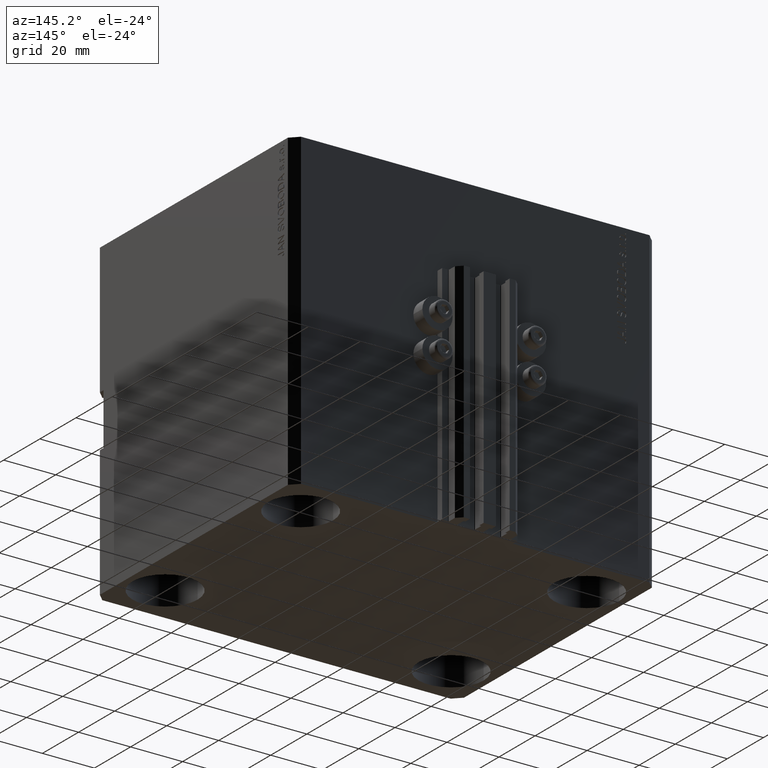
[diagram: clean part render]
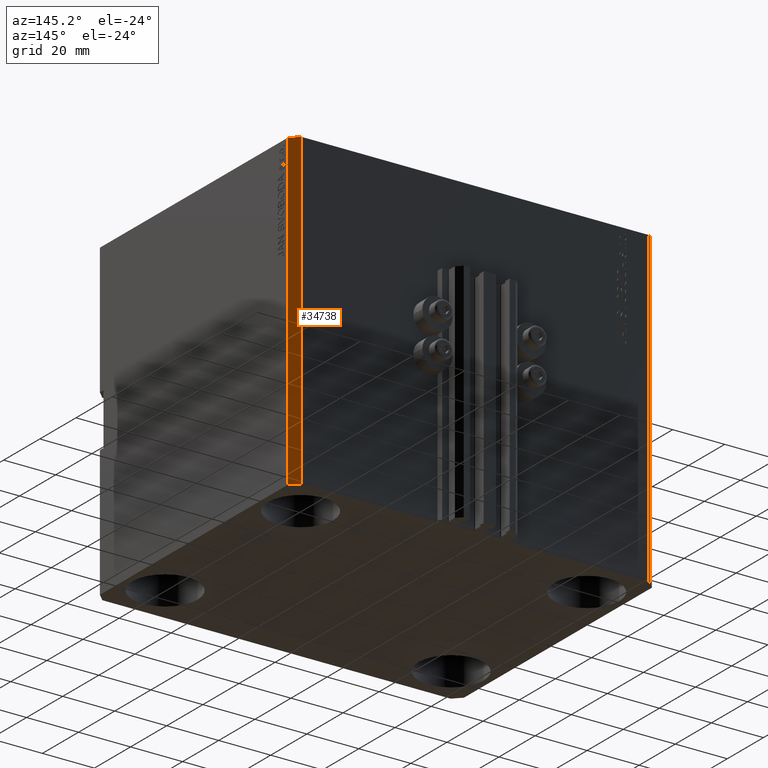
[diagram: same view with one face highlighted and labeled with its STEP entity id]
A machine part, auxiliary view. The second image highlights one B-rep face of the part: STEP entity #34738.
In plain terms, the highlighted planar face has unit normal (0.7071, 0.7071, 0).
Its self-contained STEP definition (entity closure, byte-faithful):
#369 = VERTEX_POINT ( 'NONE', #710 ) ;
#710 = CARTESIAN_POINT ( 'NONE',  ( 70.00000000000056843, 51.99999999999996447, 0.000000000000000000 ) ) ;
#1030 = DIRECTION ( 'NONE',  ( 0.000000000000000000, 0.000000000000000000, 1.000000000000000000 ) ) ;
#2008 = DIRECTION ( 'NONE',  ( -0.7071067811865344721, 0.7071067811865606734, 0.000000000000000000 ) ) ;
#2951 = EDGE_CURVE ( 'NONE', #11678, #45069, #29410, .T. ) ;
#4796 = CARTESIAN_POINT ( 'NONE',  ( 67.00000000000061107, 55.00000000000002132, 0.000000000000000000 ) ) ;
#6046 = VECTOR ( 'NONE', #1030, 1000.000000000000000 ) ;
#8432 = LINE ( 'NONE', #12882, #6046 ) ;
#9210 = VERTEX_POINT ( 'NONE', #4796 ) ;
#10125 = DIRECTION ( 'NONE',  ( 0.000000000000000000, 0.000000000000000000, 1.000000000000000000 ) ) ;
#10246 = VECTOR ( 'NONE', #44456, 1000.000000000000000 ) ;
#10285 = CARTESIAN_POINT ( 'NONE',  ( 67.00000000000061107, 55.00000000000002132, -120.0000000000000000 ) ) ;
#10608 = DIRECTION ( 'NONE',  ( 0.7071067811865605623, 0.7071067811865344721, -0.000000000000000000 ) ) ;
#11678 = VERTEX_POINT ( 'NONE', #35401 ) ;
#12882 = CARTESIAN_POINT ( 'NONE',  ( 70.00000000000056843, 51.99999999999996447, -120.0000000000000000 ) ) ;
#13241 = ORIENTED_EDGE ( 'NONE', *, *, #15892, .F. ) ;
#14068 = FACE_OUTER_BOUND ( 'NONE', #15563, .T. ) ;
#14556 = CARTESIAN_POINT ( 'NONE',  ( 70.00000000000056843, 51.99999999999996447, -120.0000000000000000 ) ) ;
#15563 = EDGE_LOOP ( 'NONE', ( #13241, #33725, #44692, #32508 ) ) ;
#15892 = EDGE_CURVE ( 'NONE', #369, #9210, #39264, .T. ) ;
#17675 = EDGE_CURVE ( 'NONE', #11678, #369, #8432, .T. ) ;
#18258 = DIRECTION ( 'NONE',  ( -0.7071067811865344721, 0.7071067811865605623, 0.000000000000000000 ) ) ;
#22873 = AXIS2_PLACEMENT_3D ( 'NONE', #14556, #10608, #18258 ) ;
#28877 = LINE ( 'NONE', #47625, #42839 ) ;
#29410 = LINE ( 'NONE', #44216, #10246 ) ;
#32508 = ORIENTED_EDGE ( 'NONE', *, *, #46480, .T. ) ;
#33725 = ORIENTED_EDGE ( 'NONE', *, *, #17675, .F. ) ;
#34738 = ADVANCED_FACE ( 'NONE', ( #14068 ), #44393, .T. ) ;
#35401 = CARTESIAN_POINT ( 'NONE',  ( 70.00000000000056843, 51.99999999999996447, -120.0000000000000000 ) ) ;
#39264 = LINE ( 'NONE', #39975, #40625 ) ;
#39975 = CARTESIAN_POINT ( 'NONE',  ( 70.00000000000056843, 51.99999999999996447, 0.000000000000000000 ) ) ;
#40625 = VECTOR ( 'NONE', #2008, 1000.000000000000000 ) ;
#42839 = VECTOR ( 'NONE', #10125, 1000.000000000000000 ) ;
#44216 = CARTESIAN_POINT ( 'NONE',  ( 70.00000000000056843, 51.99999999999996447, -120.0000000000000000 ) ) ;
#44393 = PLANE ( 'NONE',  #22873 ) ;
#44456 = DIRECTION ( 'NONE',  ( -0.7071067811865344721, 0.7071067811865606734, 0.000000000000000000 ) ) ;
#44692 = ORIENTED_EDGE ( 'NONE', *, *, #2951, .T. ) ;
#45069 = VERTEX_POINT ( 'NONE', #10285 ) ;
#46480 = EDGE_CURVE ( 'NONE', #45069, #9210, #28877, .T. ) ;
#47625 = CARTESIAN_POINT ( 'NONE',  ( 67.00000000000061107, 55.00000000000002132, -120.0000000000000000 ) ) ;